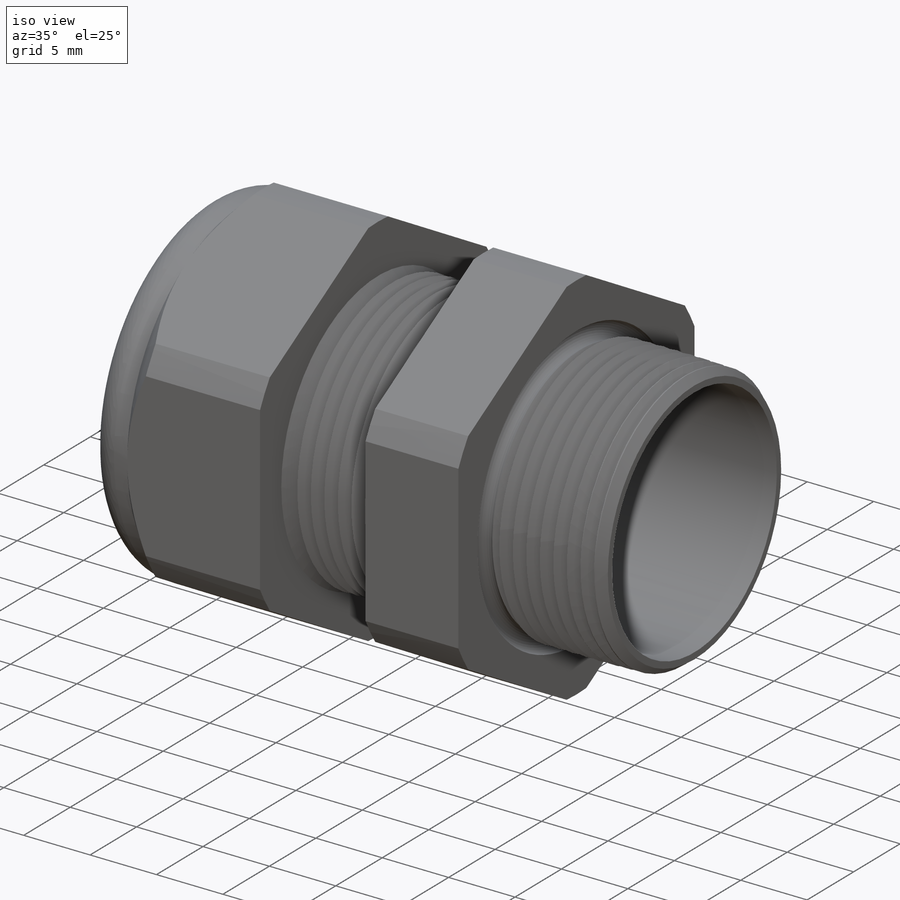
[diagram: iso view]
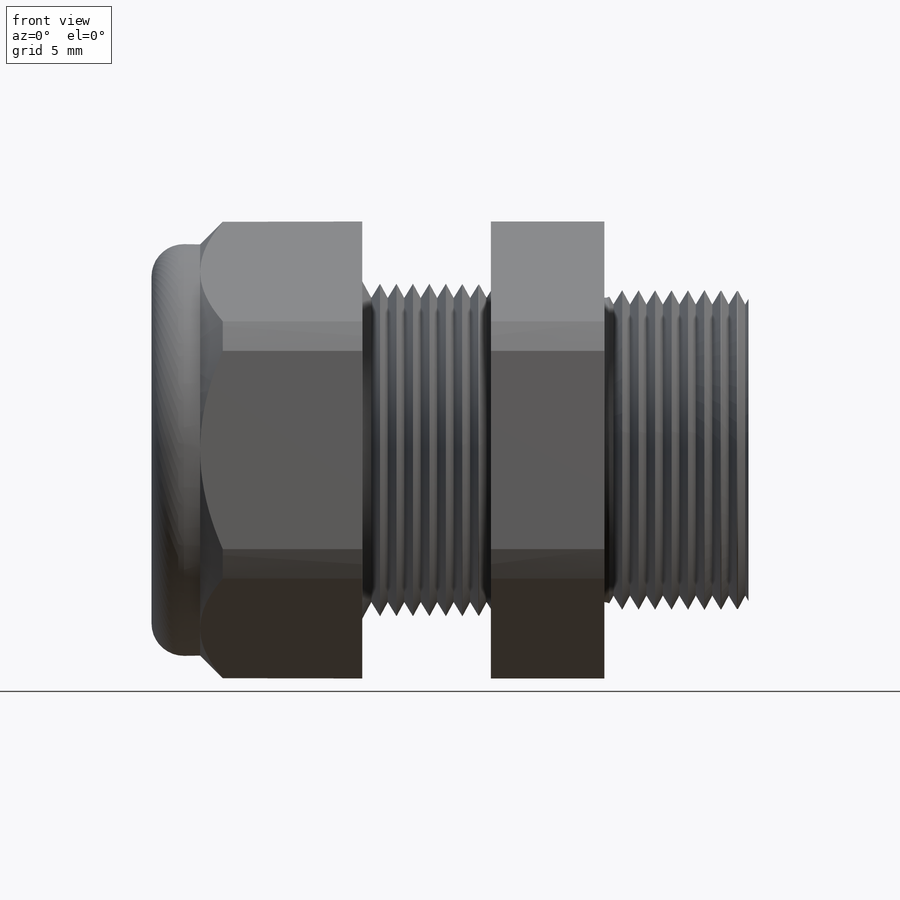
[diagram: front view]
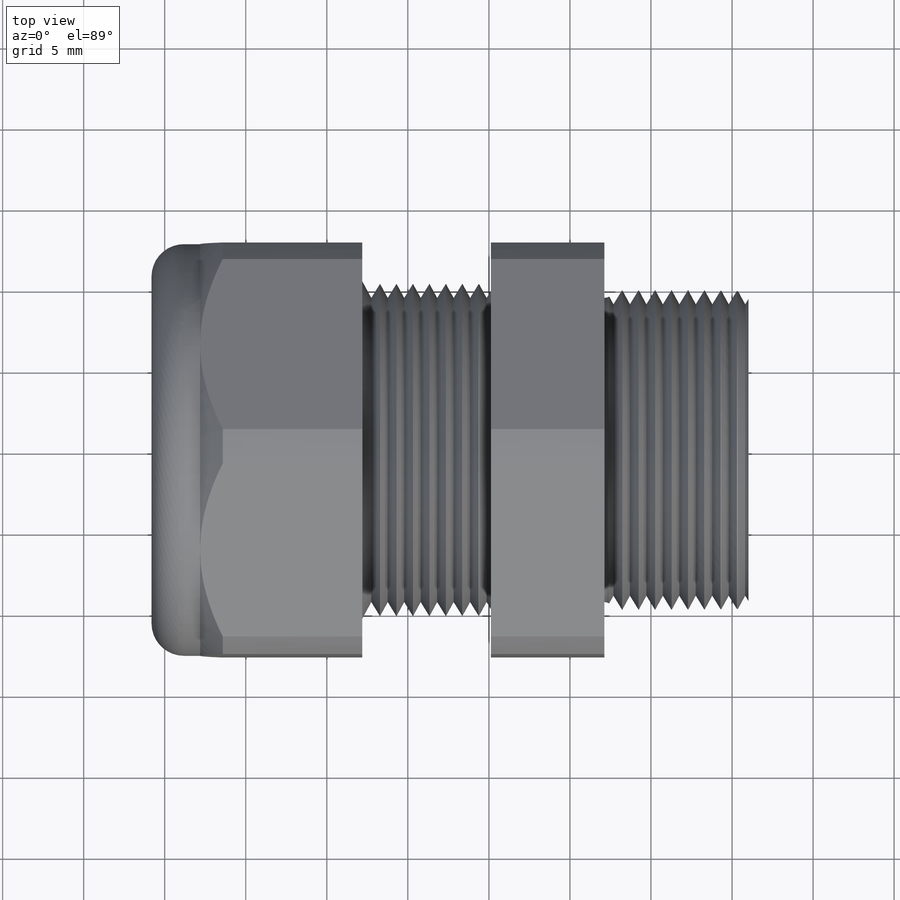
[diagram: top view]
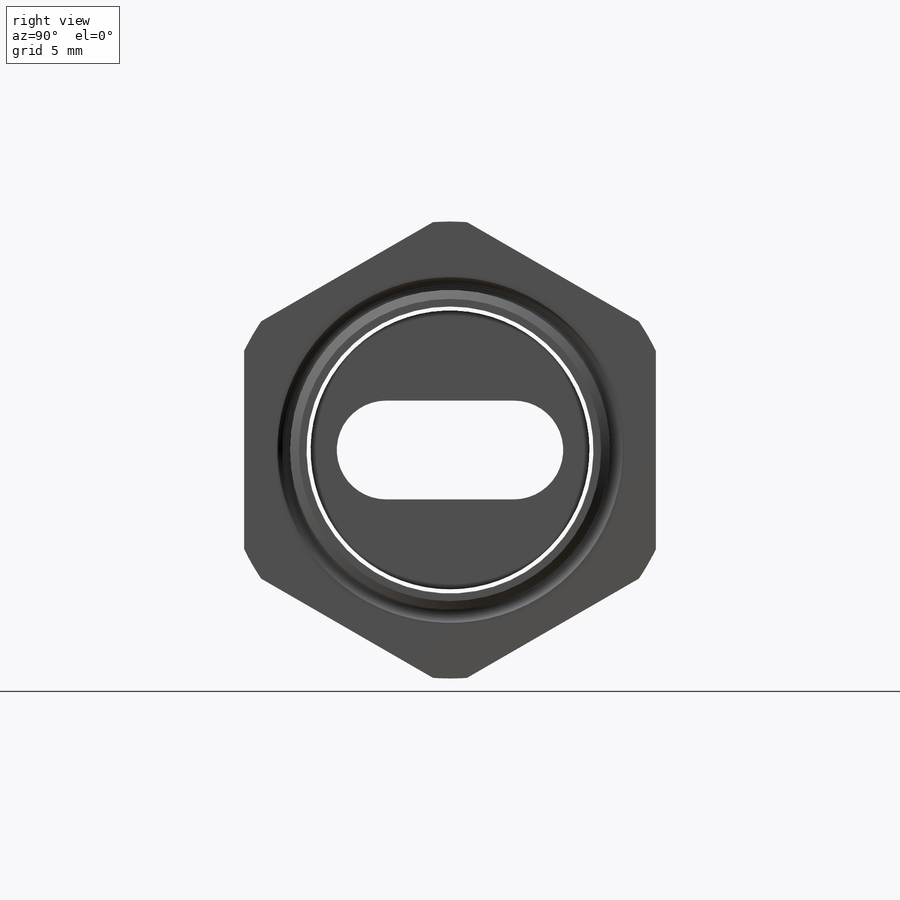
[diagram: right view]
SOLIDWORKS PART (.sldprt)
format: sldprt  version: not decoded by parser v0  size: 526,848 bytes
history: native  units: mm
features: sketch x7, cut_revolve x3, cut_extrude x2, pattern_linear x2, material x1, revolve x1, thread x1, extrude x1, fillet x1 + 1 further entry (+13 scaffold rows collapsed)
feature tree (33):
  scaffold x13  (default folders/planes/origin — collapsed)
  material  "Material <not specified>"
  "Design Table"
  sketch  "Sketch10"  dims[c1.D1=40.894mm c1.D2=9.398mm c1.D3=15.24mm c1.D4=12.8905mm c2.D3=12.8905mm c2.D4=~8.662129mm c3.D4=91.5deg c3.D5=12.8905mm c3.A=7.62mm c4.D5=28.956mm c5.D5=~1.649495deg c5.D4=7.874mm c5.D6=25.4mm c5.D7=15.24mm c5.D8=50.8mm c5.D9=3.0mm c5.D10=10.0mm c5.D11=7.0mm c5.D12=7.874mm c5.D=8.89mm c6.D12=5.2705mm c6.D3=~11.203252mm c7.D3=~91.649495deg c7.D4=5.2705mm c8.D3=~11.203252mm c9.D3=~91.649495deg c10.D3=~7.877264mm c11.D3=~1.649495deg c11.D4=~7.877264mm c12.D3=~19.114643mm c13.D3=1.5deg c13.A=20.828mm c13.D4=36.83mm c13.D5=17.7038mm c13.D7=4.5212mm c13.D2=25.862mm c14.D2=5.0deg c15.D2=~3.875139mm c15.D3=~21.986861mm c15.D7=7.44mm c16.D7=1.5deg c16.D2=~19.029425mm c17.D2=5.0deg c17.D3=~6.832575mm c17.D7=~19.029425mm c18.D7=1.5deg c18.D2=11.915mm c19.D2=4.0deg c19.D3=11.915mm c20.D2=7.94mm c21.D2=1.5deg]
  revolve  "Revolve2"  [1 undecoded]
  thread  "Cosmetic Thread2"  [2 undecoded]
  sketch  "Sketch12"  dims[c1.D2=28.194mm c1.D1=25.4mm c2.D2=~0.385494mm c2.D3=~1.335389mm]
  cut_extrude  "Cut-Extrude2"  [1 undecoded]
  sketch  "Sketch23"  dims[c1.D1=~2.534867mm c2.D1=60.0deg c2.D2=~2.356534mm c3.D2=90.0deg c4.D2=~2.356534mm c5.D2=60.0deg c5.D3=1.016mm]
  cut_revolve  "Cut-Revolve1"  Angle=360deg
  pattern_linear  "LPattern1"  Count1=8 Count2=1 Spacing1=1.016mm Spacing2=50mm
  sketch  "Sketch24"  dims[c1.D1=~1.906983mm c2.D1=90.0deg c3.D1=~3.716642mm c4.D1=60.0deg c4.D2=~1.682346mm c5.D2=60.0deg c5.D3=1.016mm]
  cut_revolve  "Cut-Revolve2"  Angle=360deg
  pattern_linear  "LPattern2"  Count1=9 Count2=1 Spacing1=1.016mm Spacing2=50mm
  sketch  "Sketch19"
  cut_extrude  "Cut-Extrude3"  Depth=3.99796mm
  sketch  "Sketch25"  dims[c1.D1=17.7038mm c1.D3=2.54mm c2.D1=0.254mm c2.D2=6.096mm c2.D3=13.97mm]
  extrude  "Extrude1"  Depth=10mm
  fillet  "Fillet4"  Radius=2mm
  sketch  "Sketch26"  dims[D1=1.27mm]
  cut_revolve  "Cut-Revolve3"  Angle=360deg
decode coverage: 14 of 18 modeling features carry decoded parameters; 1 rows unclassified (native names shown)
note: ~ marks probable driven/reference dimensions
note: 4 parameter values undecoded
summary: no parameter record found for 3 features
note: suppression state not decoded; provenance and decode notes live in map.json
